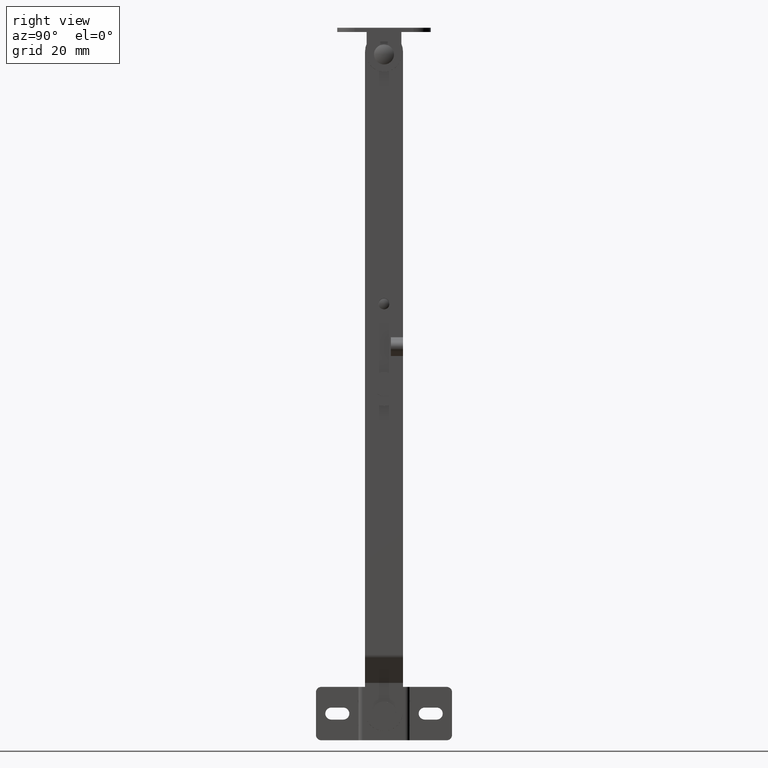
[diagram: clean part render]
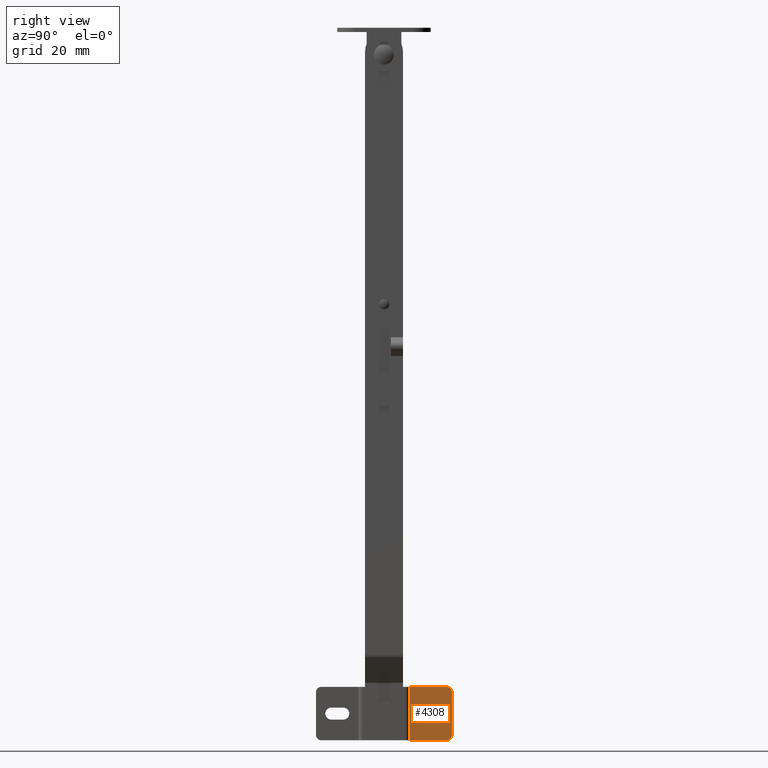
[diagram: same view with one face highlighted and labeled with its STEP entity id]
A machine part, right view. The second image highlights one B-rep face of the part: STEP entity #4308.
In plain terms, the highlighted face is a freeform B-spline surface patch.
Its self-contained STEP definition (entity closure, byte-faithful):
#3123=CARTESIAN_POINT('',(1.500005999999890,13.000000000011591,-123.499992776606210));
#3124=VERTEX_POINT('',#3123);
#3125=CARTESIAN_POINT('',(1.500005999999890,15.250000000000000,-121.250000000000000));
#3126=VERTEX_POINT('',#3125);
#3127=CARTESIAN_POINT('',(1.500005999999890,13.000000000011591,-123.499992776606210));
#3128=CARTESIAN_POINT('',(1.500005999999891,12.999808003790619,-123.223870720372300));
#3129=CARTESIAN_POINT('',(1.500005999999892,13.106231067822179,-122.653242507009490));
#3130=CARTESIAN_POINT('',(1.500005999999882,13.517785203414860,-122.003305258728500));
#3131=CARTESIAN_POINT('',(1.500005999999895,14.019825518257790,-121.591669352556810));
#3132=CARTESIAN_POINT('',(1.500005999999884,14.569024022554220,-121.323590959811100));
#3133=CARTESIAN_POINT('',(1.500005999999896,14.992263019484740,-121.249804480769000));
#3134=CARTESIAN_POINT('',(1.500005999999890,15.250000000000000,-121.250000000000000));
#3135=B_SPLINE_CURVE_WITH_KNOTS('',3,(#3127,#3128,#3129,#3130,#3131,#3132,#3133,#3134),.UNSPECIFIED.,.F.,.U.,(4,1,1,1,1,4),(0.000000634944110,0.828367029953638,1.712055584754863,2.264193330058098,2.761238464684050,3.534376353550585),.UNSPECIFIED.);
#3136=EDGE_CURVE('',#3124,#3126,#3135,.T.);
#3138=CARTESIAN_POINT('',(1.500005999999890,15.250000000000000,-125.750000000000000));
#3139=VERTEX_POINT('',#3138);
#3140=CARTESIAN_POINT('',(1.500005999999890,15.250000000000000,-125.750000000000000));
#3141=CARTESIAN_POINT('',(1.500005999999890,14.973873164314970,-125.750197732628390));
#3142=CARTESIAN_POINT('',(1.500005999999889,14.403308449734780,-125.643711834630000));
#3143=CARTESIAN_POINT('',(1.500005999999889,13.642048357574801,-125.162129428512100));
#3144=CARTESIAN_POINT('',(1.500005999999888,13.120926001774579,-124.401770143360810));
#3145=CARTESIAN_POINT('',(1.500005999999891,12.999698638576980,-123.794558171933100));
#3146=CARTESIAN_POINT('',(1.500005999999890,13.000000000011591,-123.499992776606210));
#3147=B_SPLINE_CURVE_WITH_KNOTS('',3,(#3140,#3141,#3142,#3143,#3144,#3145,#3146),.UNSPECIFIED.,.F.,.U.,(4,1,1,1,4),(0.000000625091867,0.828368929352532,1.712059513566611,2.650788564761916,3.534384496202183),.UNSPECIFIED.);
#3148=EDGE_CURVE('',#3139,#3124,#3147,.T.);
#3195=CARTESIAN_POINT('',(1.500005999999890,19.750000000000000,-125.750000000000000));
#3196=VERTEX_POINT('',#3195);
#3197=CARTESIAN_POINT('',(1.500005999999890,19.750000000000000,-125.750000000000000));
#3198=CARTESIAN_POINT('',(1.500005999999890,15.250000000000000,-125.750000000000000));
#3199=QUASI_UNIFORM_CURVE('',1,(#3197,#3198),.UNSPECIFIED.,.F.,.U.);
#3200=EDGE_CURVE('',#3196,#3139,#3199,.T.);
#3236=CARTESIAN_POINT('',(1.500005999999890,21.999999999988411,-123.500007223393790));
#3237=VERTEX_POINT('',#3236);
#3238=CARTESIAN_POINT('',(1.500005999999890,21.999999999988411,-123.500007223393790));
#3239=CARTESIAN_POINT('',(1.500005999999890,22.000135979274681,-123.739320026648200));
#3240=CARTESIAN_POINT('',(1.500005999999888,21.925869499585328,-124.199422152660400));
#3241=CARTESIAN_POINT('',(1.500005999999891,21.599726155481971,-124.847774647336810));
#3242=CARTESIAN_POINT('',(1.500005999999890,21.137346260433759,-125.310013362642910));
#3243=CARTESIAN_POINT('',(1.500005999999890,20.504493721058090,-125.658262339935400));
#3244=CARTESIAN_POINT('',(1.500005999999890,20.044587790768212,-125.750342993831890));
#3245=CARTESIAN_POINT('',(1.500005999999890,19.750000000000000,-125.750000000000000));
#3246=B_SPLINE_CURVE_WITH_KNOTS('',3,(#3238,#3239,#3240,#3241,#3242,#3243,#3244,#3245),.UNSPECIFIED.,.F.,.U.,(4,1,1,1,1,4),(0.000000634932922,0.717911027480872,1.380623915136183,2.153755817367038,2.650782462055805,3.534376353550593),.UNSPECIFIED.);
#3247=EDGE_CURVE('',#3237,#3196,#3246,.T.);
#3249=CARTESIAN_POINT('',(1.500005999999890,19.750000000000000,-121.250000000000000));
#3250=VERTEX_POINT('',#3249);
#3251=CARTESIAN_POINT('',(1.500005999999890,19.750000000000000,-121.250000000000000));
#3252=CARTESIAN_POINT('',(1.500005999999889,19.952464094582670,-121.249990308468400));
#3253=CARTESIAN_POINT('',(1.500005999999894,20.468031887663869,-121.319766471148600));
#3254=CARTESIAN_POINT('',(1.500005999999886,21.119169818129890,-121.657486987949400));
#3255=CARTESIAN_POINT('',(1.500005999999894,21.586722833035061,-122.161466016395810));
#3256=CARTESIAN_POINT('',(1.500005999999886,21.908277341766990,-122.745508996010100));
#3257=CARTESIAN_POINT('',(1.500005999999895,22.000323625178691,-123.205420586526700));
#3258=CARTESIAN_POINT('',(1.500005999999890,21.999999999988411,-123.500007223393790));
#3259=B_SPLINE_CURVE_WITH_KNOTS('',3,(#3251,#3252,#3253,#3254,#3255,#3256,#3257,#3258),.UNSPECIFIED.,.F.,.U.,(4,1,1,1,1,4),(0.000000625082672,0.607465952569943,1.546359307077527,2.153760755114476,2.650788564761460,3.534384496202183),.UNSPECIFIED.);
#3260=EDGE_CURVE('',#3250,#3237,#3259,.T.);
#3302=CARTESIAN_POINT('',(1.500005999999890,15.250000000000000,-121.250000000000000));
#3303=CARTESIAN_POINT('',(1.500005999999890,19.750000000000000,-121.250000000000000));
#3304=QUASI_UNIFORM_CURVE('',1,(#3302,#3303),.UNSPECIFIED.,.F.,.U.);
#3305=EDGE_CURVE('',#3126,#3250,#3304,.T.);
#3667=CARTESIAN_POINT('',(1.500005999999905,25.500000000000000,-131.500000000004600));
#3668=VERTEX_POINT('',#3667);
#3674=CARTESIAN_POINT('',(1.500005999999905,23.500000000000000,-133.500000000004600));
#3675=VERTEX_POINT('',#3674);
#3676=CARTESIAN_POINT('',(1.500005999999905,25.500000000000000,-131.500000000004600));
#3677=CARTESIAN_POINT('',(1.500005999999905,25.500024762870769,-131.696326763860300));
#3678=CARTESIAN_POINT('',(1.500005999999905,25.432213400630229,-132.154572803447910));
#3679=CARTESIAN_POINT('',(1.500005999999906,25.117733741650319,-132.742929526221590));
#3680=CARTESIAN_POINT('',(1.500005999999907,24.664055113596060,-133.153790709207410));
#3681=CARTESIAN_POINT('',(1.500005999999902,24.138001237445739,-133.426737443464300));
#3682=CARTESIAN_POINT('',(1.500005999999907,23.745476441468341,-133.500227054430300));
#3683=CARTESIAN_POINT('',(1.500005999999905,23.500000000000000,-133.500000000004600));
#3684=B_SPLINE_CURVE_WITH_KNOTS('',3,(#3676,#3677,#3678,#3679,#3680,#3681,#3682,#3683),.UNSPECIFIED.,.F.,.U.,(4,1,1,1,1,4),(0.000000633085463,0.589043779909998,1.374526102827517,1.963502041533384,2.405343544170499,3.141671488830760),.UNSPECIFIED.);
#3685=EDGE_CURVE('',#3668,#3675,#3684,.T.);
#3723=CARTESIAN_POINT('',(1.500005999999905,23.500000000000000,-113.500000000004600));
#3724=VERTEX_POINT('',#3723);
#3730=CARTESIAN_POINT('',(1.500005999999905,25.500000000000000,-115.500000000004410));
#3731=VERTEX_POINT('',#3730);
#3732=CARTESIAN_POINT('',(1.500005999999905,23.500000000000000,-113.500000000004600));
#3733=CARTESIAN_POINT('',(1.500005999999907,23.696347844318929,-113.499931535607400));
#3734=CARTESIAN_POINT('',(1.500005999999904,24.089009624773642,-113.558287274955010));
#3735=CARTESIAN_POINT('',(1.500005999999904,24.687257055840000,-113.840999044979100));
#3736=CARTESIAN_POINT('',(1.500005999999906,25.123606124986178,-114.277340242744900));
#3737=CARTESIAN_POINT('',(1.500005999999905,25.426730884929331,-114.862008489638800));
#3738=CARTESIAN_POINT('',(1.500005999999907,25.500218678780961,-115.254529593911600));
#3739=CARTESIAN_POINT('',(1.500005999999905,25.500000000000000,-115.500000000004410));
#3740=B_SPLINE_CURVE_WITH_KNOTS('',3,(#3732,#3733,#3734,#3735,#3736,#3737,#3738,#3739),.UNSPECIFIED.,.F.,.U.,(4,1,1,1,1,4),(0.000000633075728,0.589043779900370,1.178173080457657,1.963502041529337,2.405343544168159,3.141671488830764),.UNSPECIFIED.);
#3741=EDGE_CURVE('',#3724,#3731,#3740,.T.);
#3801=CARTESIAN_POINT('',(1.500005999999905,9.599999000000000,-113.500000000004600));
#3802=VERTEX_POINT('',#3801);
#3808=CARTESIAN_POINT('',(1.500005999999905,23.500000000000000,-113.500000000004600));
#3809=CARTESIAN_POINT('',(1.500005999999905,9.599999000000000,-113.500000000004600));
#3810=QUASI_UNIFORM_CURVE('',1,(#3808,#3809),.UNSPECIFIED.,.F.,.U.);
#3811=EDGE_CURVE('',#3724,#3802,#3810,.T.);
#3938=CARTESIAN_POINT('',(1.500005999999905,9.599999000000000,-133.500000000004600));
#3939=VERTEX_POINT('',#3938);
#3940=CARTESIAN_POINT('',(1.500005999999905,23.500000000000000,-133.500000000004600));
#3941=CARTESIAN_POINT('',(1.500005999999905,9.599999000000000,-133.500000000004600));
#3942=QUASI_UNIFORM_CURVE('',1,(#3940,#3941),.UNSPECIFIED.,.F.,.U.);
#3943=EDGE_CURVE('',#3675,#3939,#3942,.T.);
#4275=CARTESIAN_POINT('',(1.500005999999905,9.599999000000000,-133.500000000004600));
#4276=CARTESIAN_POINT('',(1.500005999999905,9.599999000000000,-113.500000000004600));
#4277=QUASI_UNIFORM_CURVE('',1,(#4275,#4276),.UNSPECIFIED.,.F.,.U.);
#4278=EDGE_CURVE('',#3939,#3802,#4277,.T.);
#4283=CARTESIAN_POINT('',(1.500005999999905,8.805794428640786,-112.501000038768500));
#4284=CARTESIAN_POINT('',(1.500005999999905,8.805794428640786,-134.499000497682490));
#4285=CARTESIAN_POINT('',(1.500005999999905,26.294205424301740,-112.501000038768500));
#4286=CARTESIAN_POINT('',(1.500005999999905,26.294205424301740,-134.499000497682490));
#4287=B_SPLINE_SURFACE_WITH_KNOTS('',1,1,((#4283,#4285),(#4284,#4286)),.UNSPECIFIED.,.F.,.F.,.U.,(2,2),(2,2),(0.0,21.998000458914060),(0.0,17.488410995660949),.UNSPECIFIED.);
#4288=CARTESIAN_POINT('',(1.500005999999905,25.500000000000000,-131.500000000004600));
#4289=CARTESIAN_POINT('',(1.500005999999905,25.500000000000000,-115.500000000004410));
#4290=QUASI_UNIFORM_CURVE('',1,(#4288,#4289),.UNSPECIFIED.,.F.,.U.);
#4291=EDGE_CURVE('',#3668,#3731,#4290,.T.);
#4292=ORIENTED_EDGE('',*,*,#4291,.T.);
#4293=ORIENTED_EDGE('',*,*,#3741,.F.);
#4294=ORIENTED_EDGE('',*,*,#3811,.T.);
#4295=ORIENTED_EDGE('',*,*,#4278,.F.);
#4296=ORIENTED_EDGE('',*,*,#3943,.F.);
#4297=ORIENTED_EDGE('',*,*,#3685,.F.);
#4298=EDGE_LOOP('',(#4292,#4293,#4294,#4295,#4296,#4297));
#4299=FACE_OUTER_BOUND('',#4298,.T.);
#4300=ORIENTED_EDGE('',*,*,#3305,.T.);
#4301=ORIENTED_EDGE('',*,*,#3260,.T.);
#4302=ORIENTED_EDGE('',*,*,#3247,.T.);
#4303=ORIENTED_EDGE('',*,*,#3200,.T.);
#4304=ORIENTED_EDGE('',*,*,#3148,.T.);
#4305=ORIENTED_EDGE('',*,*,#3136,.T.);
#4306=EDGE_LOOP('',(#4300,#4301,#4302,#4303,#4304,#4305));
#4307=FACE_BOUND('',#4306,.T.);
#4308=ADVANCED_FACE('',(#4299,#4307),#4287,.T.);